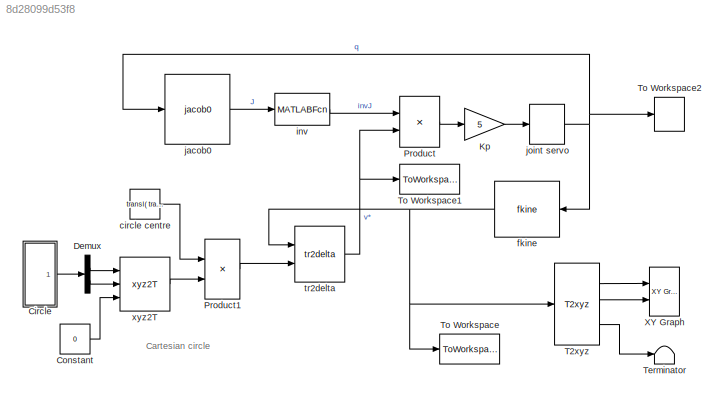
MODEL slx_8d28099d53f8
KIND model
CONFIG AbsTol = auto
CONFIG FixedStep = auto
CONFIG MaxStep = auto
CONFIG MinStep = auto
CONFIG PreLoadFcn = fprintf('*** Loading Puma560 model to workspace\n');\nmdl_puma560
CONFIG RelTol = 1e-3
CONFIG SampleTimeConstraint = Unconstrained
CONFIG Solver = ode45
CONFIG SolverMode = Auto
CONFIG SolverName = ode45
CONFIG StartTime = 0.0
CONFIG StopTime = 10.0
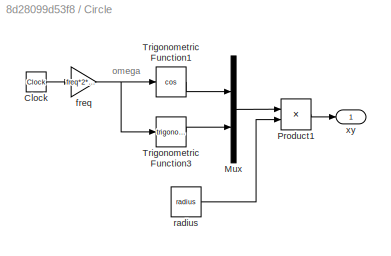
BLOCK [SubSystem] Circle
  Ports = [0, 1]
  RequestExecContextInheritance = off
BLOCK [Clock] Circle/Clock
BLOCK [Mux] Circle/Mux
  DisplayOption = bar
  Inputs = 2
  Ports = [2, 1]
BLOCK [Product] Circle/Product1
  InputSameDT = off
  Multiplication = Matrix(*)
  OutDataTypeStr = Inherit: Inherit via internal rule
  Ports = [2, 1]
  SaturateOnIntegerOverflow = off
BLOCK [Trigonometry] Circle/Trigonometric Function1
  Operator = cos
  Ports = [1, 1]
BLOCK [Trigonometry] Circle/Trigonometric Function3
  Ports = [1, 1]
BLOCK [Gain] Circle/freq
  Gain = freq*2*pi
  OutDataTypeStr = Inherit: Inherit via internal rule
  ParamDataTypeStr = Inherit: Inherit via internal rule
  SaturateOnIntegerOverflow = off
BLOCK [Constant] Circle/radius
  Value = radius
BLOCK [Outport] Circle/xy
  IconDisplay = Port number
BLOCK [Constant] Constant
  Value = 0
BLOCK [Demux] Demux
  DisplayOption = bar
  Outputs = 2
  Ports = [1, 2]
BLOCK [Gain] Kp
  Gain = 5
BLOCK [Product] Product
  Multiplication = Matrix(*)
  Ports = [2, 1]
BLOCK [Product] Product1
  Multiplication = Matrix(*)
  Ports = [2, 1]
BLOCK [Reference] T2xyz  REF=roblocks/Toolbox/T2xyz  (lib defined in mdl_2a292b13c81b, mdl_69400f8cfe22, +12 more)
  Ports = [1, 3]
  SourceBlock = roblocks/Toolbox/T2xyz
BLOCK [Terminator] Terminator
BLOCK [ToWorkspace] To Workspace
  MaxDataPoints = inf
  Ports = [1]
  SampleTime = -1
  VariableName = T
BLOCK [ToWorkspace] To Workspace1
  MaxDataPoints = inf
  Ports = [1]
  SampleTime = -1
  VariableName = v
BLOCK [ToWorkspace] To Workspace2
  MaxDataPoints = inf
  Ports = [1]
  SampleTime = -1
  VariableName = q
BLOCK [Reference] XY Graph  REF=simulink/Sinks/XY Graph
  Ports = [2]
  SourceBlock = simulink/Sinks/XY Graph
  SourceType = XY scope.
  st = -1
  xmax = 0.7
  xmin = 0.5
  ymax = -0.05
  ymin = -0.25
BLOCK [Constant] circle centre
  Value = transl( transl(p560.fkine(qn)) )
BLOCK [Reference] fkine  REF=roblocks/Arm/fkine  (lib defined in mdl_2a292b13c81b, mdl_69400f8cfe22, +12 more)
  Ports = [1, 1]
  SourceBlock = roblocks/Arm/fkine
  robot = p560
BLOCK [MATLABFcn] inv
  MATLABFcn = inv
  Output1D = off
  Ports = [1, 1]
BLOCK [Reference] jacob0   REF=roblocks/Arm/jacob0  (lib defined in mdl_2a292b13c81b, mdl_69400f8cfe22, +12 more)

  Ports = [1, 1]
  SourceBlock = roblocks/Arm/jacob0
  robot = p560
BLOCK [DiscreteIntegrator] joint servo
  ICPrevOutput = DiscIntNeverNeededParam
  ICPrevScaledInput = DiscIntNeverNeededParam
  InitialCondition = qn'
  Ports = [1, 1]
  SampleTime = 0.05
BLOCK [Reference] tr2delta  REF=roblocks/Toolbox/tr2delta  (lib defined in mdl_2a292b13c81b, mdl_69400f8cfe22, +12 more)
  Ports = [2, 1]
  SourceBlock = roblocks/Toolbox/tr2delta
BLOCK [Reference] xyz2T  REF=roblocks/Toolbox/xyz2T  (lib defined in mdl_2a292b13c81b, mdl_69400f8cfe22, +12 more)
  Ports = [3, 1]
  SourceBlock = roblocks/Toolbox/xyz2T
ANNOTATION (root): Cartesian circle
ANNOTATION Circle: omega
LINE Circle/Clock:1 -> Circle/freq:1
LINE Circle/Mux:1 -> Circle/Product1:1
LINE Circle/Product1:1 -> Circle/xy:1
LINE Circle/Trigonometric Function1:1 -> Circle/Mux:1
LINE Circle/Trigonometric Function3:1 -> Circle/Mux:2
NET Circle/freq:1 -> Circle/Trigonometric Function1:1, Circle/Trigonometric Function3:1
LINE Circle/radius:1 -> Circle/Product1:2
LINE Circle:1 -> Demux:1
LINE Constant:1 -> xyz2T:3
LINE Demux:1 -> xyz2T:1
LINE Demux:2 -> xyz2T:2
LINE Kp:1 -> joint servo:1
LINE Product1:1 -> tr2delta:2
LINE Product:1 -> Kp:1
LINE T2xyz:1 -> XY Graph:1
LINE T2xyz:2 -> XY Graph:2
LINE T2xyz:3 -> Terminator:1
LINE circle centre:1 -> Product1:1
NET fkine:1 -> T2xyz:1, To Workspace:1, tr2delta:1
LINE inv:1 -> Product:1
LINE jacob0 :1 -> inv:1
NET joint servo:1 -> To Workspace2:1, fkine:1, jacob0 :1
NET tr2delta:1 -> Product:2, To Workspace1:1
LINE xyz2T:1 -> Product1:2
note: NET lines group one-source signal fan-out (src -> all destinations, sorted); 1:1 wires keep LINE
